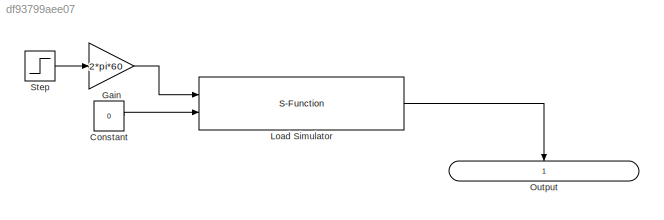
MODEL slx_df93799aee07
KIND model
CONFIG AbsTol = auto
CONFIG EnableMultiTasking = on
CONFIG FixedStep = auto
CONFIG MaxStep = auto
CONFIG MinStep = auto
CONFIG RelTol = 1e-3
CONFIG SampleTimeConstraint = Unconstrained
CONFIG Solver = ode45
CONFIG SolverName = ode45
CONFIG StartTime = 0.0
CONFIG StopTime = 10.0
BLOCK [Constant] Constant
  Value = 0
BLOCK [Gain] Gain
  Gain = 2*pi*60
BLOCK [S-Function] Load Simulator 
  CopyFcn = set_param(gcbh,'LinkStatus','none')
  EnableBusSupport = off
  FunctionName = LoadSim
  InitFcn = try, set_param(gcb,'FunctionName','LoadSim'), end
  OpenFcn = sfunctionwizard(gcbh)
  Ports = [2, 1]
  PreSaveFcn = try, set_param(gcb,'FunctionName','LoadSim'), end
  SFcnIsStateOwnerBlock = off
  SFunctionDeploymentMode = off
  SFunctionModules = LoadSim_wrapper
BLOCK [Outport] Output
  IconDisplay = Signal name
  NameLocation = left
  SignalName = torque
BLOCK [Step] Step
  After = 2000
  Before = 1000
  SampleTime = 0
LINE Constant:1 -> Load Simulator :2
LINE Gain:1 -> Load Simulator :1
LINE Load Simulator :1 -> Output:1
LINE Step:1 -> Gain:1
